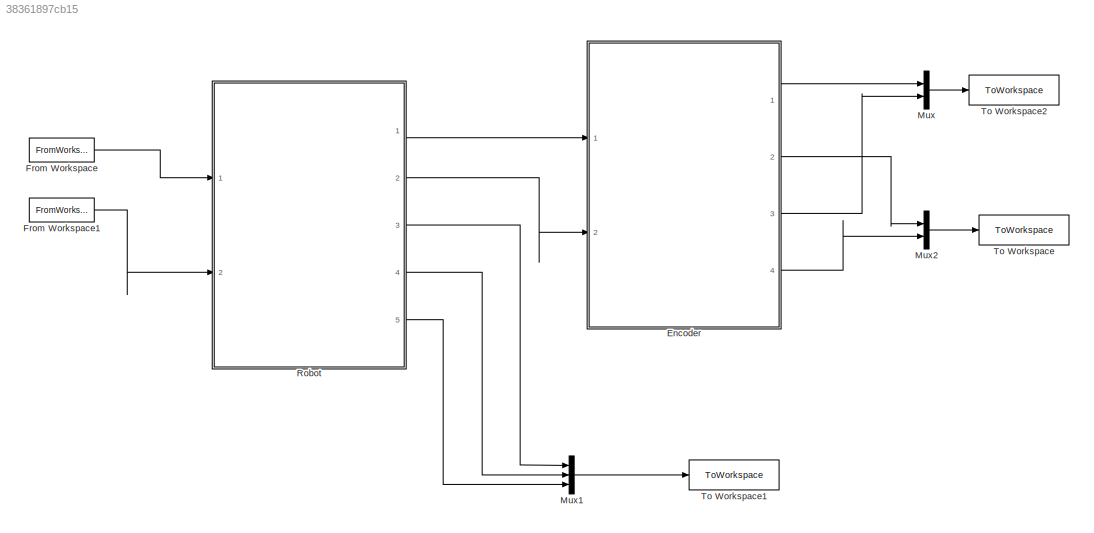
MODEL slx_38361897cb15
KIND model
CONFIG AbsTol = auto
CONFIG EnableMultiTasking = off
CONFIG FixedStep = auto
CONFIG MaxStep = auto
CONFIG MinStep = auto
CONFIG RelTol = 1e-3
CONFIG SampleTimeConstraint = Unconstrained
CONFIG SolverName = VariableStepAuto
CONFIG StartTime = 0.0
CONFIG StopTime = 10.0
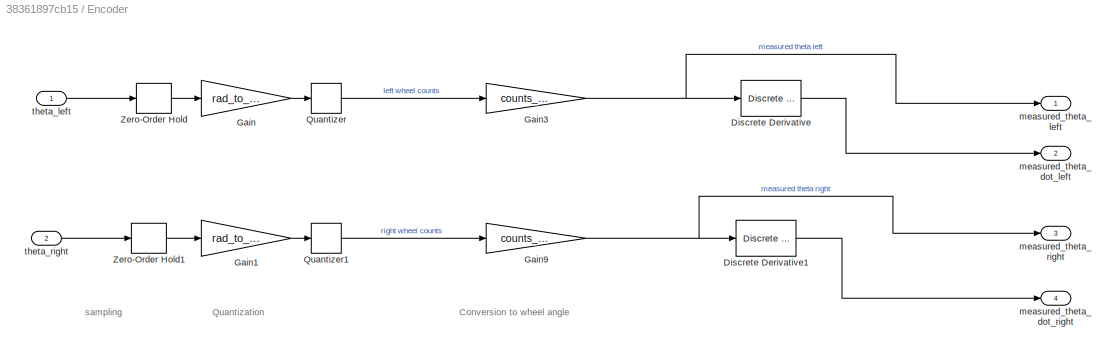
BLOCK [SubSystem] Encoder 
  Ports = [2, 4]
  RequestExecContextInheritance = off
BLOCK [Reference] Encoder /Discrete Derivative  REF=simulink/Discrete/Discrete Derivative
  Ports = [1, 1]
  SourceBlock = simulink/Discrete/Discrete Derivative
  SourceProductBaseCode = SL
  SourceType = Discrete Derivative
BLOCK [Reference] Encoder /Discrete Derivative1  REF=simulink/Discrete/Discrete Derivative
  Ports = [1, 1]
  SourceBlock = simulink/Discrete/Discrete Derivative
  SourceProductBaseCode = SL
  SourceType = Discrete Derivative
BLOCK [Gain] Encoder /Gain
  Gain = rad_to_counts
BLOCK [Gain] Encoder /Gain1
  Gain = rad_to_counts
BLOCK [Gain] Encoder /Gain3
  Gain = counts_to_rad
BLOCK [Gain] Encoder /Gain9
  Gain = counts_to_rad
BLOCK [Quantizer] Encoder /Quantizer
  QuantizationInterval = 1
BLOCK [Quantizer] Encoder /Quantizer1
  QuantizationInterval = 1
BLOCK [ZeroOrderHold] Encoder /Zero-Order Hold
  SampleTime = Ts
BLOCK [ZeroOrderHold] Encoder /Zero-Order Hold1
  SampleTime = Ts
BLOCK [Outport] Encoder /measured_theta_dot_left
  Port = 2
BLOCK [Outport] Encoder /measured_theta_dot_right
  Port = 4
BLOCK [Outport] Encoder /measured_theta_left
BLOCK [Outport] Encoder /measured_theta_right
  Port = 3
BLOCK [Inport] Encoder /theta_left
BLOCK [Inport] Encoder /theta_right
  Port = 2
BLOCK [FromWorkspace] From Workspace
  VariableName = V_left
BLOCK [FromWorkspace] From Workspace1
  VariableName = V_right
BLOCK [Mux] Mux
  DisplayOption = bar
  Inputs = 2
  Ports = [2, 1]
BLOCK [Mux] Mux1
  DisplayOption = bar
  Inputs = 3
  Ports = [3, 1]
BLOCK [Mux] Mux2
  DisplayOption = bar
  Inputs = 2
  Ports = [2, 1]
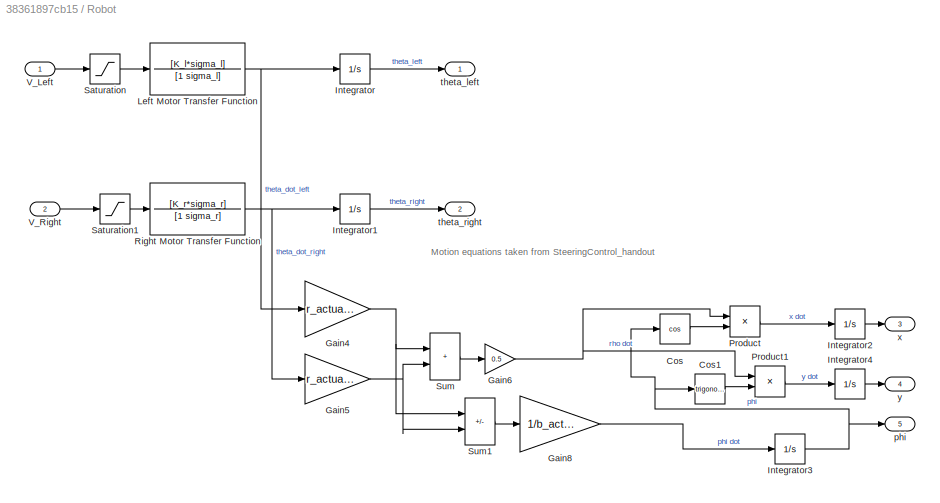
BLOCK [SubSystem] Robot
  Ports = [2, 5]
  RequestExecContextInheritance = off
BLOCK [Trigonometry] Robot/Cos
  Operator = cos
  Ports = [1, 1]
BLOCK [Trigonometry] Robot/Cos1
  Ports = [1, 1]
BLOCK [Gain] Robot/Gain4
  Gain = r_actual_ft
BLOCK [Gain] Robot/Gain5
  Gain = r_actual_ft
BLOCK [Gain] Robot/Gain6
  Gain = 0.5
BLOCK [Gain] Robot/Gain8
  Gain = 1/b_actual_ft
BLOCK [Integrator] Robot/Integrator
  Ports = [1, 1]
BLOCK [Integrator] Robot/Integrator1
  Ports = [1, 1]
BLOCK [Integrator] Robot/Integrator2
  Ports = [1, 1]
BLOCK [Integrator] Robot/Integrator3
  Ports = [1, 1]
BLOCK [Integrator] Robot/Integrator4
  Ports = [1, 1]
BLOCK [TransferFcn] Robot/Left Motor Transfer Function
  Denominator = [1 sigma_l]
  Numerator = [K_l*sigma_l]
BLOCK [Product] Robot/Product
  Ports = [2, 1]
BLOCK [Product] Robot/Product1
  Ports = [2, 1]
BLOCK [TransferFcn] Robot/Right Motor Transfer Function
  Denominator = [1 sigma_r]
  Numerator = [K_r*sigma_r]
BLOCK [Saturate] Robot/Saturation
  LowerLimit = -7.5
  UpperLimit = 7.5
BLOCK [Saturate] Robot/Saturation1
  LowerLimit = -7.5
  UpperLimit = 7.5
BLOCK [Sum] Robot/Sum
  IconShape = rectangular
  Ports = [2, 1]
BLOCK [Sum] Robot/Sum1
  IconShape = rectangular
  Inputs = -+
  Ports = [2, 1]
BLOCK [Inport] Robot/V_Left
BLOCK [Inport] Robot/V_Right
  Port = 2
BLOCK [Outport] Robot/phi
  Port = 5
BLOCK [Outport] Robot/theta_left
BLOCK [Outport] Robot/theta_right
  Port = 2
BLOCK [Outport] Robot/x
  Port = 3
BLOCK [Outport] Robot/y
  Port = 4
BLOCK [ToWorkspace] To Workspace
  FixptAsFi = on
  MaxDataPoints = inf
  Ports = [1]
  SampleTime = .01
  SaveFormat = Timeseries
  VariableName = Theta_Dot
BLOCK [ToWorkspace] To Workspace1
  FixptAsFi = on
  MaxDataPoints = inf
  Ports = [1]
  SampleTime = .1
  SaveFormat = Timeseries
  VariableName = Pos
BLOCK [ToWorkspace] To Workspace2
  FixptAsFi = on
  MaxDataPoints = inf
  Ports = [1]
  SampleTime = .01
  SaveFormat = Timeseries
  VariableName = Theta
ANNOTATION Encoder : Conversion to wheel angle
ANNOTATION Encoder : Quantization
ANNOTATION Encoder : sampling
ANNOTATION Robot: Motion equations taken from SteeringControl_handout
LINE Encoder /Discrete Derivative1:1 -> Encoder /measured_theta_dot_right:1
LINE Encoder /Discrete Derivative:1 -> Encoder /measured_theta_dot_left:1
LINE Encoder /Gain1:1 -> Encoder /Quantizer1:1
NET Encoder /Gain3:1 -> Encoder /Discrete Derivative:1, Encoder /measured_theta_left:1
NET Encoder /Gain9:1 -> Encoder /Discrete Derivative1:1, Encoder /measured_theta_right:1
LINE Encoder /Gain:1 -> Encoder /Quantizer:1
LINE Encoder /Quantizer1:1 -> Encoder /Gain9:1
LINE Encoder /Quantizer:1 -> Encoder /Gain3:1
LINE Encoder /Zero-Order Hold1:1 -> Encoder /Gain1:1
LINE Encoder /Zero-Order Hold:1 -> Encoder /Gain:1
LINE Encoder /theta_left:1 -> Encoder /Zero-Order Hold:1
LINE Encoder /theta_right:1 -> Encoder /Zero-Order Hold1:1
LINE Encoder :1 -> Mux:1
LINE Encoder :2 -> Mux2:1
LINE Encoder :3 -> Mux:2
LINE Encoder :4 -> Mux2:2
LINE From Workspace1:1 -> Robot:2
LINE From Workspace:1 -> Robot:1
LINE Mux1:1 -> To Workspace1:1
LINE Mux2:1 -> To Workspace:1
LINE Mux:1 -> To Workspace2:1
LINE Robot/Cos1:1 -> Robot/Product1:2
LINE Robot/Cos:1 -> Robot/Product:2
NET Robot/Gain4:1 -> Robot/Sum1:1, Robot/Sum:1
NET Robot/Gain5:1 -> Robot/Sum1:2, Robot/Sum:2
NET Robot/Gain6:1 -> Robot/Product1:1, Robot/Product:1
LINE Robot/Gain8:1 -> Robot/Integrator3:1
LINE Robot/Integrator1:1 -> Robot/theta_right:1
LINE Robot/Integrator2:1 -> Robot/x:1
NET Robot/Integrator3:1 -> Robot/Cos1:1, Robot/Cos:1, Robot/phi:1
LINE Robot/Integrator4:1 -> Robot/y:1
LINE Robot/Integrator:1 -> Robot/theta_left:1
NET Robot/Left Motor Transfer Function:1 -> Robot/Gain4:1, Robot/Integrator:1
LINE Robot/Product1:1 -> Robot/Integrator4:1
LINE Robot/Product:1 -> Robot/Integrator2:1
NET Robot/Right Motor Transfer Function:1 -> Robot/Gain5:1, Robot/Integrator1:1
LINE Robot/Saturation1:1 -> Robot/Right Motor Transfer Function:1
LINE Robot/Saturation:1 -> Robot/Left Motor Transfer Function:1
LINE Robot/Sum1:1 -> Robot/Gain8:1
LINE Robot/Sum:1 -> Robot/Gain6:1
LINE Robot/V_Left:1 -> Robot/Saturation:1
LINE Robot/V_Right:1 -> Robot/Saturation1:1
LINE Robot:1 -> Encoder :1
LINE Robot:2 -> Encoder :2
LINE Robot:3 -> Mux1:1
LINE Robot:4 -> Mux1:2
LINE Robot:5 -> Mux1:3
note: NET lines group one-source signal fan-out (src -> all destinations, sorted); 1:1 wires keep LINE
